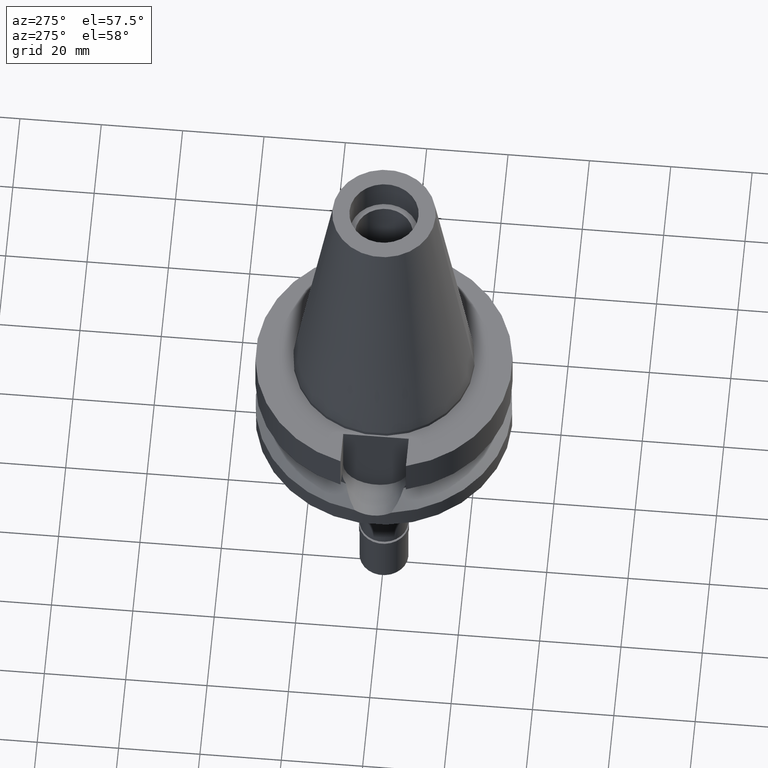
[diagram: clean part render]
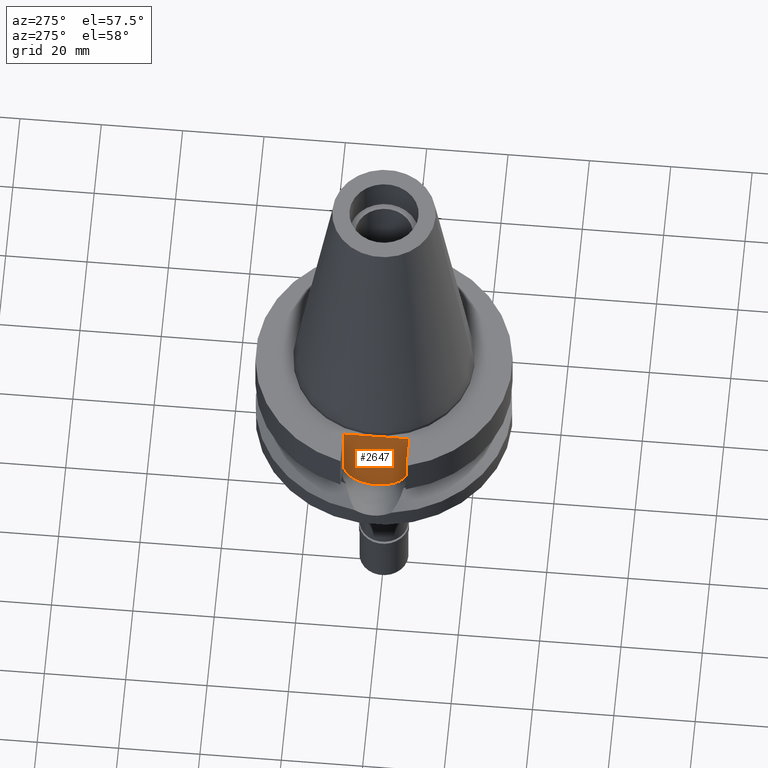
[diagram: same view with one face highlighted and labeled with its STEP entity id]
A machine part, auxiliary view. The second image highlights one B-rep face of the part: STEP entity #2647.
In plain terms, the highlighted planar face has unit normal (-1, 0, 0).
Its self-contained STEP definition (entity closure, byte-faithful):
#71 = EDGE_LOOP ( 'NONE', ( #1764, #996, #726, #2317 ) ) ;
#197 = VERTEX_POINT ( 'NONE', #690 ) ;
#238 = EDGE_CURVE ( 'NONE', #694, #1406, #2010, .T. ) ;
#241 = VECTOR ( 'NONE', #1809, 1000.000000000000000 ) ;
#392 = DIRECTION ( 'NONE',  ( 0.0000000000000000000, 0.0000000000000000000, -1.000000000000000000 ) ) ;
#690 = CARTESIAN_POINT ( 'NONE',  ( -22.50000000000000000, -8.050000000000000711, -14.94999999999999929 ) ) ;
#694 = VERTEX_POINT ( 'NONE', #1483 ) ;
#726 = ORIENTED_EDGE ( 'NONE', *, *, #2055, .F. ) ;
#738 = AXIS2_PLACEMENT_3D ( 'NONE', #2838, #827, #849 ) ;
#752 = CARTESIAN_POINT ( 'NONE',  ( -22.50000000000000000, 8.050000000000000711, -14.94999999999999929 ) ) ;
#827 = DIRECTION ( 'NONE',  ( -1.000000000000000000, 0.0000000000000000000, 0.0000000000000000000 ) ) ;
#844 = CIRCLE ( 'NONE', #2727, 8.050000000000000711 ) ;
#849 = DIRECTION ( 'NONE',  ( 0.0000000000000000000, 0.0000000000000000000, 1.000000000000000000 ) ) ;
#996 = ORIENTED_EDGE ( 'NONE', *, *, #1696, .F. ) ;
#1001 = CARTESIAN_POINT ( 'NONE',  ( -22.50000000000000000, 8.050000000000000711, -1.000000000000000000 ) ) ;
#1184 = VECTOR ( 'NONE', #392, 1000.000000000000000 ) ;
#1210 = VECTOR ( 'NONE', #2148, 1000.000000000000000 ) ;
#1406 = VERTEX_POINT ( 'NONE', #1001 ) ;
#1483 = CARTESIAN_POINT ( 'NONE',  ( -22.50000000000000000, -8.050000000000000711, -1.000000000000000000 ) ) ;
#1543 = PLANE ( 'NONE',  #738 ) ;
#1696 = EDGE_CURVE ( 'NONE', #197, #2616, #844, .T. ) ;
#1764 = ORIENTED_EDGE ( 'NONE', *, *, #2488, .F. ) ;
#1780 = CARTESIAN_POINT ( 'NONE',  ( -22.50000000000000000, -8.050000000000000711, -1.000000000000000000 ) ) ;
#1791 = DIRECTION ( 'NONE',  ( 0.0000000000000000000, 0.0000000000000000000, -1.000000000000000000 ) ) ;
#1809 = DIRECTION ( 'NONE',  ( 0.0000000000000000000, 1.000000000000000000, 0.0000000000000000000 ) ) ;
#1820 = DIRECTION ( 'NONE',  ( 1.000000000000000000, 0.0000000000000000000, 0.0000000000000000000 ) ) ;
#1984 = FACE_OUTER_BOUND ( 'NONE', #71, .T. ) ;
#2010 = LINE ( 'NONE', #1780, #241 ) ;
#2055 = EDGE_CURVE ( 'NONE', #694, #197, #2817, .T. ) ;
#2148 = DIRECTION ( 'NONE',  ( 0.0000000000000000000, 0.0000000000000000000, 1.000000000000000000 ) ) ;
#2317 = ORIENTED_EDGE ( 'NONE', *, *, #238, .T. ) ;
#2374 = LINE ( 'NONE', #752, #1210 ) ;
#2378 = CARTESIAN_POINT ( 'NONE',  ( -22.50000000000000000, -8.050000000000000711, -1.000000000000000000 ) ) ;
#2488 = EDGE_CURVE ( 'NONE', #2616, #1406, #2374, .T. ) ;
#2616 = VERTEX_POINT ( 'NONE', #2644 ) ;
#2644 = CARTESIAN_POINT ( 'NONE',  ( -22.50000000000000000, 8.050000000000000711, -14.94999999999999929 ) ) ;
#2647 = ADVANCED_FACE ( 'NONE', ( #1984 ), #1543, .T. ) ;
#2654 = CARTESIAN_POINT ( 'NONE',  ( -22.50000000000000000, 1.807578675540999863E-14, -14.94999999999999929 ) ) ;
#2727 = AXIS2_PLACEMENT_3D ( 'NONE', #2654, #1820, #1791 ) ;
#2817 = LINE ( 'NONE', #2378, #1184 ) ;
#2838 = CARTESIAN_POINT ( 'NONE',  ( -22.50000000000000000, 2.173748068486999793E-14, 0.0000000000000000000 ) ) ;